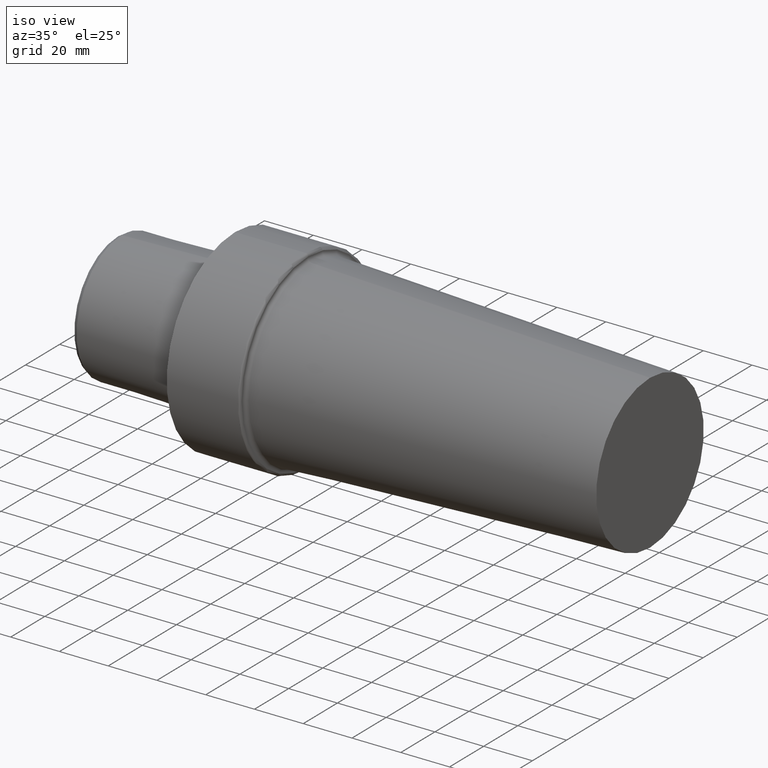
[diagram: clean part render]
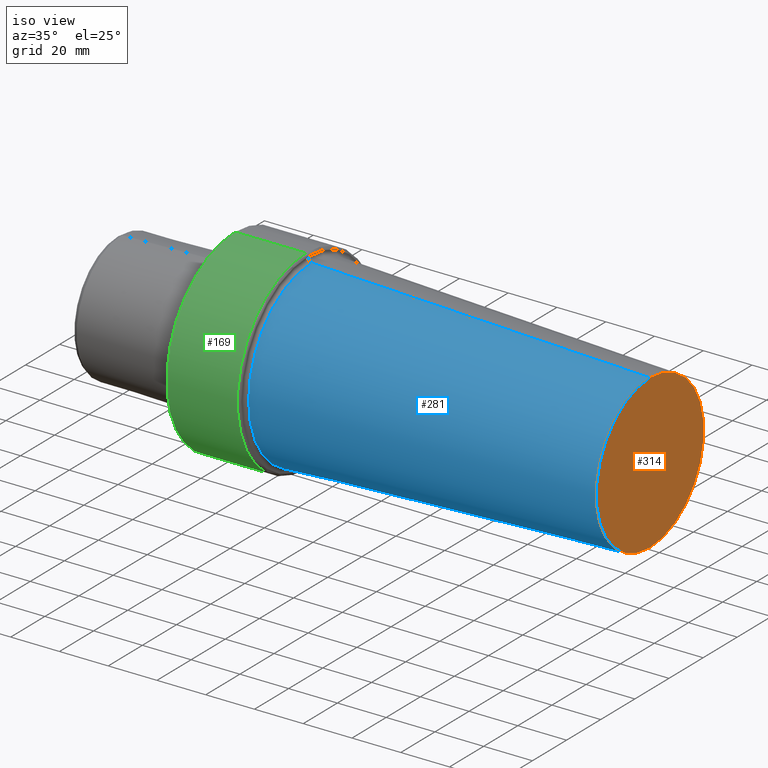
[diagram: same view with three faces highlighted in distinct colors, each labeled with its STEP entity id]
A machine part, iso view with three faces highlighted in distinct colors.
Their STEP definitions:

[orange] entity #314 — the highlighted planar face has unit normal (-1, 0, 0).
#31 = AXIS2_PLACEMENT_3D ( 'NONE', #527, #532, #149 ) ;
#33 = DIRECTION ( 'NONE',  ( -1.000000000000000000, 0.000000000000000000, 0.000000000000000000 ) ) ;
#44 = PLANE ( 'NONE',  #253 ) ;
#61 = DIRECTION ( 'NONE',  ( -1.000000000000000000, 0.000000000000000000, 0.000000000000000000 ) ) ;
#81 = EDGE_LOOP ( 'NONE', ( #468, #225 ) ) ;
#113 = CARTESIAN_POINT ( 'NONE',  ( 170.1999504090875917, 4.190953338524140822E-15, -31.49999997253168615 ) ) ;
#134 = EDGE_CURVE ( 'NONE', #479, #135, #244, .T. ) ;
#135 = VERTEX_POINT ( 'NONE', #113 ) ;
#149 = DIRECTION ( 'NONE',  ( 0.000000000000000000, 0.000000000000000000, 1.000000000000000000 ) ) ;
#188 = DIRECTION ( 'NONE',  ( 0.000000000000000000, 0.000000000000000000, 1.000000000000000000 ) ) ;
#200 = CARTESIAN_POINT ( 'NONE',  ( 170.1999504090875917, 0.000000000000000000, 0.000000000000000000 ) ) ;
#207 = CARTESIAN_POINT ( 'NONE',  ( 170.1999504090875917, 0.000000000000000000, 0.000000000000000000 ) ) ;
#225 = ORIENTED_EDGE ( 'NONE', *, *, #538, .F. ) ;
#244 = CIRCLE ( 'NONE', #31, 31.49999997253168615 ) ;
#250 = FACE_OUTER_BOUND ( 'NONE', #81, .T. ) ;
#253 = AXIS2_PLACEMENT_3D ( 'NONE', #207, #61, #423 ) ;
#272 = CIRCLE ( 'NONE', #395, 31.49999997253168615 ) ;
#314 = ADVANCED_FACE ( 'NONE', ( #250 ), #44, .F. ) ;
#362 = CARTESIAN_POINT ( 'NONE',  ( 170.1999504090875917, 0.000000000000000000, 31.49999997253168615 ) ) ;
#395 = AXIS2_PLACEMENT_3D ( 'NONE', #200, #33, #188 ) ;
#423 = DIRECTION ( 'NONE',  ( 0.000000000000000000, 0.000000000000000000, 1.000000000000000000 ) ) ;
#468 = ORIENTED_EDGE ( 'NONE', *, *, #134, .F. ) ;
#479 = VERTEX_POINT ( 'NONE', #362 ) ;
#527 = CARTESIAN_POINT ( 'NONE',  ( 170.1999504090875917, 0.000000000000000000, 0.000000000000000000 ) ) ;
#532 = DIRECTION ( 'NONE',  ( -1.000000000000000000, 0.000000000000000000, 0.000000000000000000 ) ) ;
#538 = EDGE_CURVE ( 'NONE', #135, #479, #272, .T. ) ;

[blue] entity #281 — the highlighted conical surface has half-angle 2.247 deg.
#5 = ORIENTED_EDGE ( 'NONE', *, *, #538, .T. ) ;
#32 = AXIS2_PLACEMENT_3D ( 'NONE', #411, #454, #499 ) ;
#33 = DIRECTION ( 'NONE',  ( -1.000000000000000000, 0.000000000000000000, 0.000000000000000000 ) ) ;
#53 = CARTESIAN_POINT ( 'NONE',  ( 170.1999504090875917, 3.857637413950260996E-15, -31.49999997253168615 ) ) ;
#77 = VECTOR ( 'NONE', #302, 1000.000000000000114 ) ;
#90 = ORIENTED_EDGE ( 'NONE', *, *, #342, .T. ) ;
#99 = DIRECTION ( 'NONE',  ( -0.9992314028999961240, 0.000000000000000000, 0.03919953390673725641 ) ) ;
#102 = ORIENTED_EDGE ( 'NONE', *, *, #325, .F. ) ;
#107 = VERTEX_POINT ( 'NONE', #110 ) ;
#110 = CARTESIAN_POINT ( 'NONE',  ( 31.44120067062139512, 0.000000000000000000, 36.94346211697936155 ) ) ;
#113 = CARTESIAN_POINT ( 'NONE',  ( 170.1999504090875917, 4.190953338524140822E-15, -31.49999997253168615 ) ) ;
#114 = DIRECTION ( 'NONE',  ( -1.000000000000000000, 0.000000000000000000, 0.000000000000000000 ) ) ;
#117 = CONICAL_SURFACE ( 'NONE', #32, 31.49999997253168615, 0.03920957987802033140 ) ;
#123 = FACE_OUTER_BOUND ( 'NONE', #337, .T. ) ;
#135 = VERTEX_POINT ( 'NONE', #113 ) ;
#148 = VECTOR ( 'NONE', #99, 1000.000000000000114 ) ;
#188 = DIRECTION ( 'NONE',  ( 0.000000000000000000, 0.000000000000000000, 1.000000000000000000 ) ) ;
#194 = CIRCLE ( 'NONE', #466, 36.94346211697936155 ) ;
#200 = CARTESIAN_POINT ( 'NONE',  ( 170.1999504090875917, 0.000000000000000000, 0.000000000000000000 ) ) ;
#229 = VERTEX_POINT ( 'NONE', #296 ) ;
#270 = ORIENTED_EDGE ( 'NONE', *, *, #482, .F. ) ;
#272 = CIRCLE ( 'NONE', #395, 31.49999997253168615 ) ;
#281 = ADVANCED_FACE ( 'NONE', ( #123 ), #117, .T. ) ;
#296 = CARTESIAN_POINT ( 'NONE',  ( 31.44120067062139512, 4.524269263098024593E-15, -36.94346211697936155 ) ) ;
#302 = DIRECTION ( 'NONE',  ( -0.9992314028999961240, 4.800558372695389665E-18, -0.03919953390673725641 ) ) ;
#311 = LINE ( 'NONE', #53, #77 ) ;
#315 = CARTESIAN_POINT ( 'NONE',  ( 31.44120067062139512, 0.000000000000000000, 0.000000000000000000 ) ) ;
#325 = EDGE_CURVE ( 'NONE', #135, #229, #311, .T. ) ;
#337 = EDGE_LOOP ( 'NONE', ( #102, #5, #90, #270 ) ) ;
#340 = LINE ( 'NONE', #392, #148 ) ;
#342 = EDGE_CURVE ( 'NONE', #479, #107, #340, .T. ) ;
#362 = CARTESIAN_POINT ( 'NONE',  ( 170.1999504090875917, 0.000000000000000000, 31.49999997253168615 ) ) ;
#392 = CARTESIAN_POINT ( 'NONE',  ( 170.1999504090875917, 0.000000000000000000, 31.49999997253168615 ) ) ;
#395 = AXIS2_PLACEMENT_3D ( 'NONE', #200, #33, #188 ) ;
#411 = CARTESIAN_POINT ( 'NONE',  ( 170.1999504090875917, 0.000000000000000000, 0.000000000000000000 ) ) ;
#438 = DIRECTION ( 'NONE',  ( 0.000000000000000000, 0.000000000000000000, 1.000000000000000000 ) ) ;
#454 = DIRECTION ( 'NONE',  ( -1.000000000000000000, 0.000000000000000000, 0.000000000000000000 ) ) ;
#466 = AXIS2_PLACEMENT_3D ( 'NONE', #315, #114, #438 ) ;
#479 = VERTEX_POINT ( 'NONE', #362 ) ;
#482 = EDGE_CURVE ( 'NONE', #229, #107, #194, .T. ) ;
#499 = DIRECTION ( 'NONE',  ( 0.000000000000000000, 0.000000000000000000, 1.000000000000000000 ) ) ;
#538 = EDGE_CURVE ( 'NONE', #135, #479, #272, .T. ) ;

[green] entity #169 — the highlighted cylindrical surface (partial cylindrical patch) has radius 39.9925 mm, axis along (-1, 0, 0).
#3 = DIRECTION ( 'NONE',  ( -1.000000000000000000, 0.000000000000000000, 0.000000000000000000 ) ) ;
#7 = CARTESIAN_POINT ( 'NONE',  ( -47.99999995507708661, 0.000000000000000000, 0.000000000000000000 ) ) ;
#16 = ORIENTED_EDGE ( 'NONE', *, *, #129, .T. ) ;
#25 = ORIENTED_EDGE ( 'NONE', *, *, #223, .F. ) ;
#41 = LINE ( 'NONE', #327, #321 ) ;
#46 = AXIS2_PLACEMENT_3D ( 'NONE', #494, #452, #172 ) ;
#48 = DIRECTION ( 'NONE',  ( 0.000000000000000000, 0.000000000000000000, 1.000000000000000000 ) ) ;
#71 = DIRECTION ( 'NONE',  ( 0.000000000000000000, 0.000000000000000000, 1.000000000000000000 ) ) ;
#72 = CARTESIAN_POINT ( 'NONE',  ( 2.691416640612785863E-09, 4.897668707065322260E-15, -39.99249996386929951 ) ) ;
#109 = DIRECTION ( 'NONE',  ( -1.000000000000000000, 0.000000000000000000, 0.000000000000000000 ) ) ;
#129 = EDGE_CURVE ( 'NONE', #177, #222, #394, .T. ) ;
#131 = EDGE_LOOP ( 'NONE', ( #180, #16, #517, #25 ) ) ;
#156 = VERTEX_POINT ( 'NONE', #72 ) ;
#169 = ADVANCED_FACE ( 'NONE', ( #379 ), #539, .T. ) ;
#170 = CARTESIAN_POINT ( 'NONE',  ( 2.691416640612785863E-09, 0.000000000000000000, 39.99249996386929951 ) ) ;
#171 = VERTEX_POINT ( 'NONE', #170 ) ;
#172 = DIRECTION ( 'NONE',  ( 0.000000000000000000, 0.000000000000000000, 1.000000000000000000 ) ) ;
#177 = VERTEX_POINT ( 'NONE', #368 ) ;
#180 = ORIENTED_EDGE ( 'NONE', *, *, #286, .F. ) ;
#202 = AXIS2_PLACEMENT_3D ( 'NONE', #7, #3, #48 ) ;
#222 = VERTEX_POINT ( 'NONE', #465 ) ;
#223 = EDGE_CURVE ( 'NONE', #156, #171, #278, .T. ) ;
#278 = CIRCLE ( 'NONE', #46, 39.99249996386929951 ) ;
#286 = EDGE_CURVE ( 'NONE', #177, #156, #41, .T. ) ;
#307 = AXIS2_PLACEMENT_3D ( 'NONE', #357, #493, #71 ) ;
#321 = VECTOR ( 'NONE', #458, 1000.000000000000000 ) ;
#327 = CARTESIAN_POINT ( 'NONE',  ( -47.99999995507708661, 4.897668707065322260E-15, -39.99249996386929951 ) ) ;
#330 = VECTOR ( 'NONE', #109, 1000.000000000000000 ) ;
#357 = CARTESIAN_POINT ( 'NONE',  ( 28.99999997311141797, 0.000000000000000000, 0.000000000000000000 ) ) ;
#368 = CARTESIAN_POINT ( 'NONE',  ( 28.99999997311141797, 4.897668707065322260E-15, -39.99249996386929951 ) ) ;
#379 = FACE_OUTER_BOUND ( 'NONE', #131, .T. ) ;
#394 = CIRCLE ( 'NONE', #307, 39.99249996386929951 ) ;
#452 = DIRECTION ( 'NONE',  ( -1.000000000000000000, 0.000000000000000000, 0.000000000000000000 ) ) ;
#458 = DIRECTION ( 'NONE',  ( -1.000000000000000000, 0.000000000000000000, 0.000000000000000000 ) ) ;
#465 = CARTESIAN_POINT ( 'NONE',  ( 28.99999997311141797, 0.000000000000000000, 39.99249996386929951 ) ) ;
#480 = CARTESIAN_POINT ( 'NONE',  ( -47.99999995507708661, 0.000000000000000000, 39.99249996386929951 ) ) ;
#483 = LINE ( 'NONE', #480, #330 ) ;
#493 = DIRECTION ( 'NONE',  ( -1.000000000000000000, 0.000000000000000000, 0.000000000000000000 ) ) ;
#494 = CARTESIAN_POINT ( 'NONE',  ( 2.691416640612785863E-09, 0.000000000000000000, 0.000000000000000000 ) ) ;
#509 = EDGE_CURVE ( 'NONE', #222, #171, #483, .T. ) ;
#517 = ORIENTED_EDGE ( 'NONE', *, *, #509, .T. ) ;
#539 = CYLINDRICAL_SURFACE ( 'NONE', #202, 39.99249996386929951 ) ;